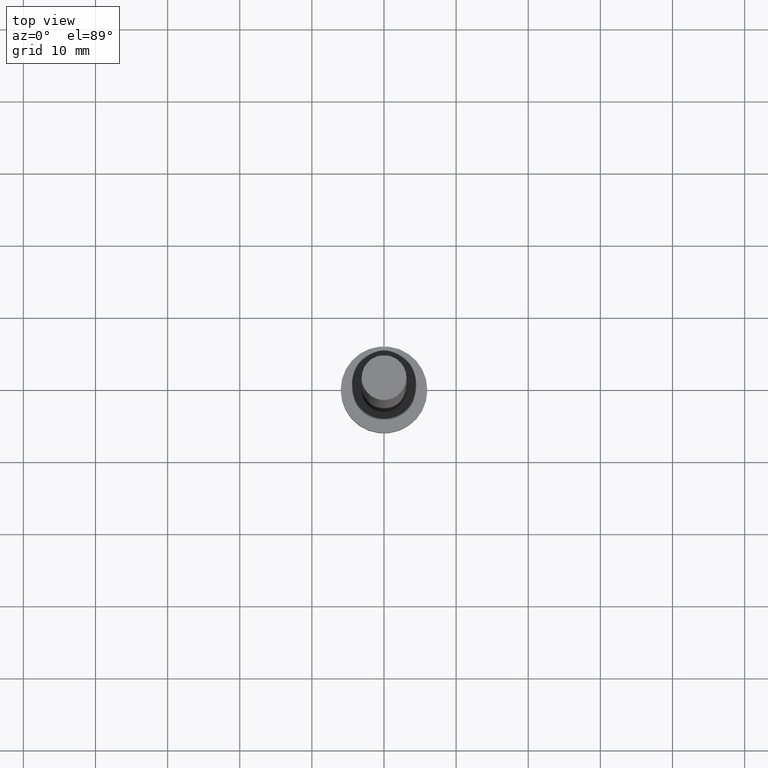
[diagram: clean part render]
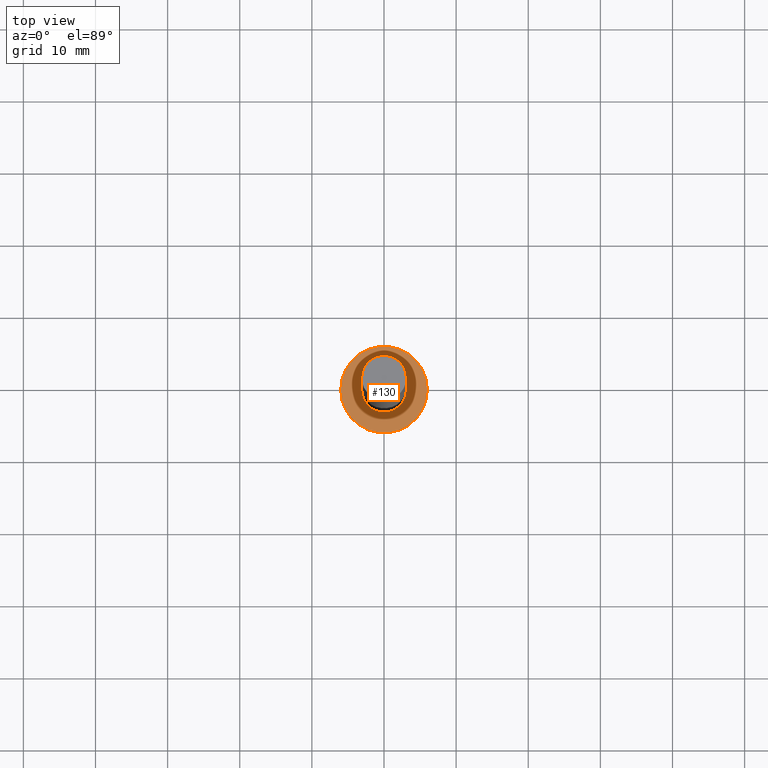
[diagram: same view with one face highlighted and labeled with its STEP entity id]
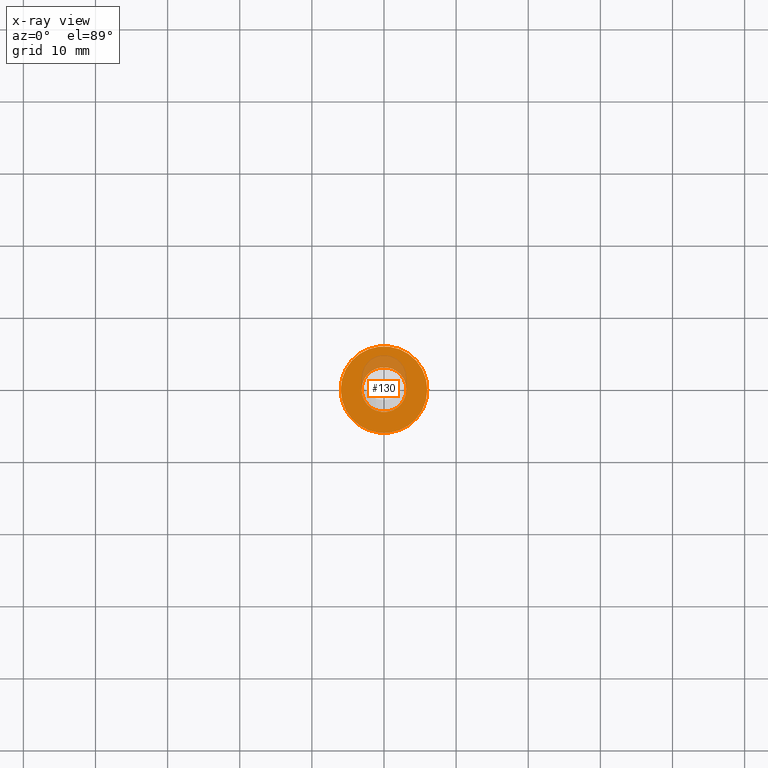
[diagram: x-ray of the same camera — body ghosted, the highlighted face saturated]
A machine part, top view. The second image highlights one B-rep face of the part: STEP entity #130.
The next image is the same camera in x-ray: the body ghosted, the highlighted face saturated — about 13% of this face is hidden behind the body in this view.
In plain terms, the highlighted planar face has unit normal (0, 0, 1).
Its self-contained STEP definition (entity closure, byte-faithful):
#33 = FACE_BOUND ( 'NONE', #141, .T. ) ;
#38 = EDGE_CURVE ( 'NONE', #237, #116, #137, .T. ) ;
#49 = CARTESIAN_POINT ( 'NONE',  ( 3.100000000000000089, 3.796405077356794918E-16, 5.000000000000000000 ) ) ;
#53 = AXIS2_PLACEMENT_3D ( 'NONE', #204, #146, #166 ) ;
#64 = AXIS2_PLACEMENT_3D ( 'NONE', #199, #78, #218 ) ;
#70 = DIRECTION ( 'NONE',  ( 1.000000000000000000, 0.000000000000000000, 0.000000000000000000 ) ) ;
#71 = CARTESIAN_POINT ( 'NONE',  ( 0.000000000000000000, 0.000000000000000000, 5.000000000000000000 ) ) ;
#78 = DIRECTION ( 'NONE',  ( 0.000000000000000000, 0.000000000000000000, 1.000000000000000000 ) ) ;
#81 = VERTEX_POINT ( 'NONE', #49 ) ;
#83 = ORIENTED_EDGE ( 'NONE', *, *, #154, .T. ) ;
#85 = EDGE_CURVE ( 'NONE', #81, #238, #144, .T. ) ;
#86 = CARTESIAN_POINT ( 'NONE',  ( -3.100000000000000089, 0.000000000000000000, 5.000000000000000000 ) ) ;
#91 = PLANE ( 'NONE',  #140 ) ;
#99 = ORIENTED_EDGE ( 'NONE', *, *, #85, .F. ) ;
#100 = EDGE_CURVE ( 'NONE', #238, #81, #228, .T. ) ;
#103 = CARTESIAN_POINT ( 'NONE',  ( 0.000000000000000000, 0.000000000000000000, 5.000000000000000000 ) ) ;
#106 = DIRECTION ( 'NONE',  ( 0.000000000000000000, 0.000000000000000000, 1.000000000000000000 ) ) ;
#116 = VERTEX_POINT ( 'NONE', #243 ) ;
#124 = FACE_OUTER_BOUND ( 'NONE', #200, .T. ) ;
#130 = ADVANCED_FACE ( 'NONE', ( #33, #124 ), #91, .T. ) ;
#132 = DIRECTION ( 'NONE',  ( 1.000000000000000000, 0.000000000000000000, 0.000000000000000000 ) ) ;
#137 = CIRCLE ( 'NONE', #64, 6.000000000000000888 ) ;
#140 = AXIS2_PLACEMENT_3D ( 'NONE', #222, #168, #226 ) ;
#141 = EDGE_LOOP ( 'NONE', ( #178, #99 ) ) ;
#144 = CIRCLE ( 'NONE', #240, 3.100000000000000089 ) ;
#146 = DIRECTION ( 'NONE',  ( 0.000000000000000000, 0.000000000000000000, 1.000000000000000000 ) ) ;
#154 = EDGE_CURVE ( 'NONE', #116, #237, #201, .T. ) ;
#164 = DIRECTION ( 'NONE',  ( 0.000000000000000000, 0.000000000000000000, 1.000000000000000000 ) ) ;
#166 = DIRECTION ( 'NONE',  ( 1.000000000000000000, 0.000000000000000000, 0.000000000000000000 ) ) ;
#168 = DIRECTION ( 'NONE',  ( 0.000000000000000000, 0.000000000000000000, 1.000000000000000000 ) ) ;
#178 = ORIENTED_EDGE ( 'NONE', *, *, #100, .F. ) ;
#181 = ORIENTED_EDGE ( 'NONE', *, *, #38, .T. ) ;
#187 = CARTESIAN_POINT ( 'NONE',  ( -6.000000000000000888, 0.000000000000000000, 5.000000000000000000 ) ) ;
#195 = AXIS2_PLACEMENT_3D ( 'NONE', #103, #106, #132 ) ;
#199 = CARTESIAN_POINT ( 'NONE',  ( 0.000000000000000000, 0.000000000000000000, 5.000000000000000000 ) ) ;
#200 = EDGE_LOOP ( 'NONE', ( #181, #83 ) ) ;
#201 = CIRCLE ( 'NONE', #195, 6.000000000000000888 ) ;
#204 = CARTESIAN_POINT ( 'NONE',  ( 0.000000000000000000, 0.000000000000000000, 5.000000000000000000 ) ) ;
#218 = DIRECTION ( 'NONE',  ( 1.000000000000000000, 0.000000000000000000, 0.000000000000000000 ) ) ;
#222 = CARTESIAN_POINT ( 'NONE',  ( 0.000000000000000000, 0.000000000000000000, 5.000000000000000000 ) ) ;
#226 = DIRECTION ( 'NONE',  ( 1.000000000000000000, 0.000000000000000000, -0.000000000000000000 ) ) ;
#228 = CIRCLE ( 'NONE', #53, 3.100000000000000089 ) ;
#237 = VERTEX_POINT ( 'NONE', #187 ) ;
#238 = VERTEX_POINT ( 'NONE', #86 ) ;
#240 = AXIS2_PLACEMENT_3D ( 'NONE', #71, #164, #70 ) ;
#243 = CARTESIAN_POINT ( 'NONE',  ( 6.000000000000000888, 7.347880794884120722E-16, 5.000000000000000000 ) ) ;